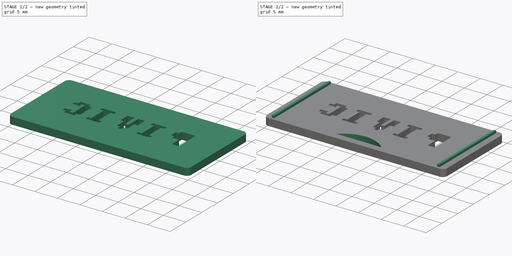
[diagram: build sequence overview — one tinted view per stage of 2, left to right]
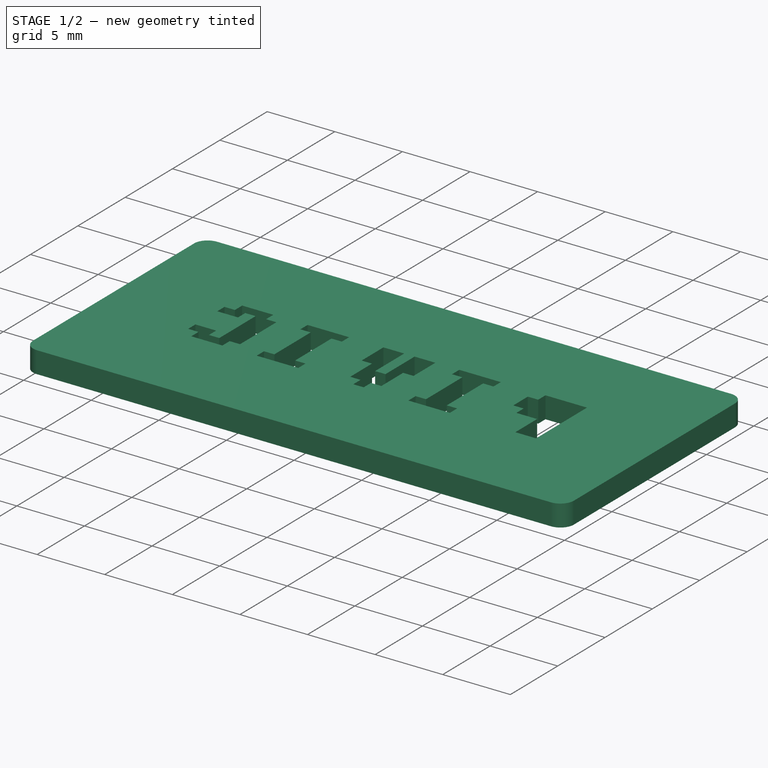
[diagram: stage 1 of 2 — iso view after this stage's code; geometry added in this stage tinted green]
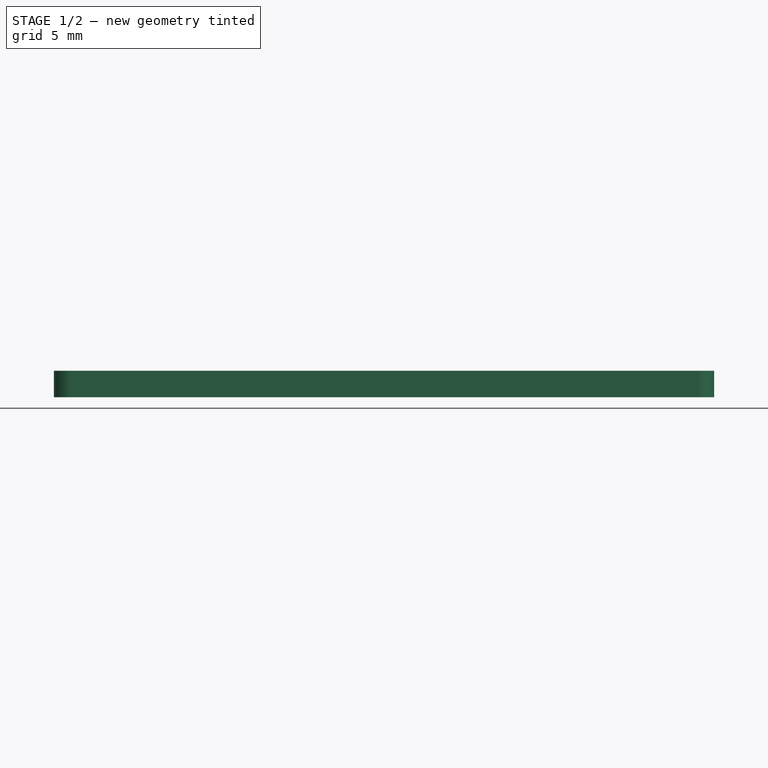
[diagram: stage 1 of 2 — front view after this stage's code; geometry added in this stage tinted green]
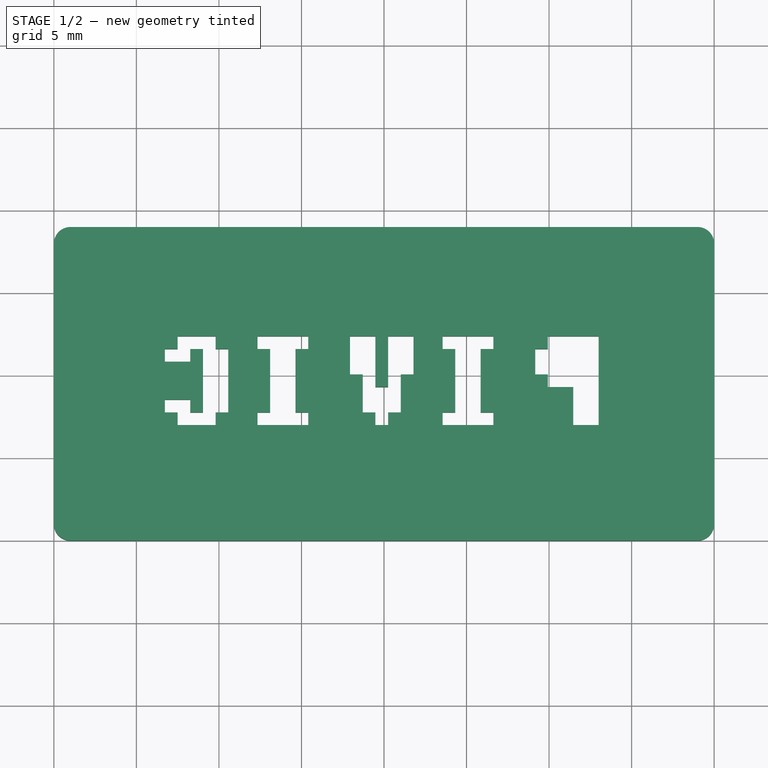
[diagram: stage 1 of 2 — top view after this stage's code; geometry added in this stage tinted green]
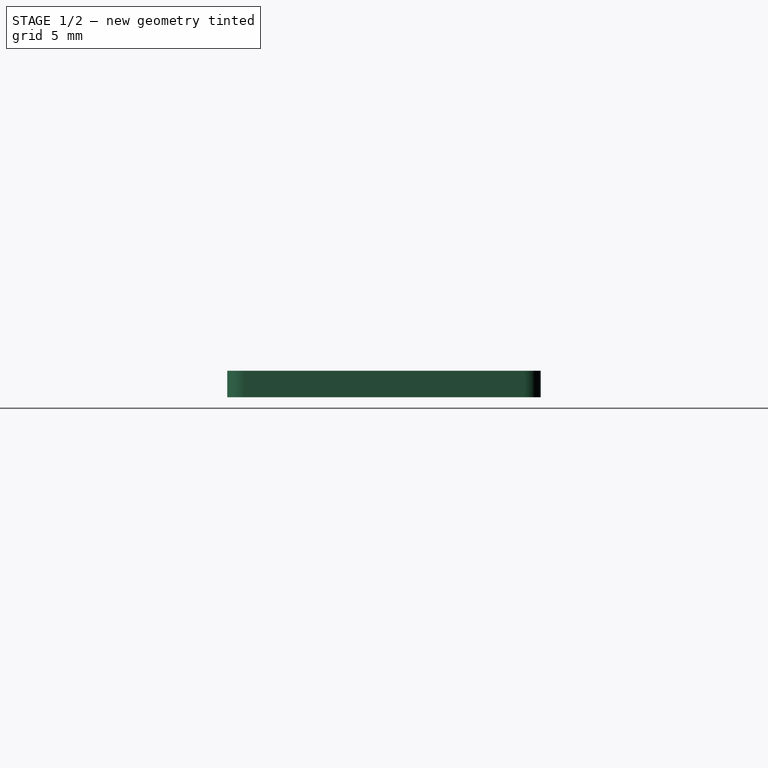
[diagram: stage 1 of 2 — right view after this stage's code; geometry added in this stage tinted green]
FCSTD DOCUMENT  (FreeCAD 0.21R33771 (Git))
Label: ocula-dvi-adapter-protection-plate
License: All rights reserved
LicenseURL: http://en.wikipedia.org/wiki/All_rights_reserved
objects: Sketcher::SketchObject×4, PartDesign::Pad×2, PartDesign::Pocket×2, PartDesign::Plane×1, Part::Part2DObjectPython×1, PartDesign::Body×1
note: 15 computed .brp shape members not serialized (recipe doc carries the construction recipe); baked Part::Feature solids carry a one-line shape summary decoded from their .brp

FEATURE [Sketcher::SketchObject] Sketch
  FullyConstrained = true
  MapMode = 5
  Support = -> [XY_Plane]
  sketch-geometry (8):
    g0: LineSegment StartX=1 StartY=19 StartZ=0 EndX=39 EndY=19 EndZ=0
    g1: LineSegment StartX=40 StartY=18 StartZ=0 EndX=40 EndY=1 EndZ=0
    g2: LineSegment StartX=39 StartY=0 StartZ=0 EndX=1 EndY=0 EndZ=0
    g3: LineSegment StartX=0 StartY=1 StartZ=0 EndX=0 EndY=18 EndZ=0
    g4: ArcOfCircle CenterX=1 CenterY=1 CenterZ=0 NormalX=0 NormalY=0 NormalZ=1 AngleXU=0 Radius=1 StartAngle=3.14159 EndAngle=4.71239
    g5: ArcOfCircle CenterX=1 CenterY=18 CenterZ=0 NormalX=0 NormalY=0 NormalZ=1 AngleXU=0 Radius=1 StartAngle=1.5708 EndAngle=3.14159
    g6: ArcOfCircle CenterX=39 CenterY=18 CenterZ=0 NormalX=0 NormalY=0 NormalZ=1 AngleXU=0 Radius=1 StartAngle=-1.8e-15 EndAngle=1.5708
    g7: ArcOfCircle CenterX=39 CenterY=1 CenterZ=0 NormalX=0 NormalY=0 NormalZ=1 AngleXU=0 Radius=1 StartAngle=4.71239 EndAngle=6.28319
  constraints (20):
    c: Horizontal(g0)
    c: Horizontal(g2)
    c: Vertical(g1)
    c: Vertical(g3)
    c: Tangent(g2,g4) = 1.5708
    c: Tangent(g3,g4) = 1.5708
    c: Tangent(g0,g5) = 1.5708
    c: Tangent(g3,g5) = 1.5708
    c: Tangent(g0,g6) = 1.5708
    c: Tangent(g1,g6) = 1.5708
    c: Tangent(g1,g7) = 1.5708
    c: Tangent(g2,g7) = 1.5708
    c: DistanceY(g2,g0) = 19
    c: DistanceX(g3,g1) = 40
    c: Diameter(g4) = 2
    c: Equal(g6,g7)
    c: Equal(g7,g5)
    c: Equal(g5,g4)
    c: PointOnObject(g2,g-1)
    c: PointOnObject(g3,g-2)
FEATURE [PartDesign::Pad] Pad
  Direction = (0,0,1)
  Length = 1.6
  Length2 = 10
  Profile = -> Sketch
  ReferenceAxis = -> Sketch [N_Axis]
  Type = 0
FEATURE [PartDesign::Plane] DatumPlane
  AttachmentOffset = pos=(0,0,1.6) rot=(0,0,1;0rad)
  Length = 76.4018
  MapMode = 5
  Placement = pos=(0,0,1.6) rot=(0,0,1;0rad)
  ResizeMode = 0
  Support = -> [XY_Plane]
  Width = 61.4018
FEATURE [Part::Part2DObjectPython] ShapeString  # Draft 2D object (typed FeaturePython)
  AttachmentOffset = pos=(-33,7,0) rot=(0,0,1;0rad)
  FontFile = <userpath>/Downloads/CUminiBold5x7Noh.ttf
  MakeFace = true
  MapMode = 5
  Placement = pos=(33,7,1.6) rot=(0,1,0;3.14159rad)
  Size = 2
  String = PIVIC
  Support = -> [Pad]
  Tracking = 1
FEATURE [Sketcher::SketchObject] Sketch001
  FullyConstrained = true
  MapMode = 5
  Placement = pos=(0,0,1.6) rot=(0,0,1;0rad)
  Support = -> [DatumPlane]
  sketch-geometry (8):
    g0: LineSegment StartX=1.4 StartY=18.5 StartZ=0 EndX=1.9 EndY=18.5 EndZ=0
    g1: LineSegment StartX=1.9 StartY=18.5 StartZ=0 EndX=1.9 EndY=0.5 EndZ=0
    g2: LineSegment StartX=1.9 StartY=0.5 StartZ=0 EndX=1.4 EndY=0.5 EndZ=0
    g3: LineSegment StartX=1.4 StartY=0.5 StartZ=0 EndX=1.4 EndY=18.5 EndZ=0
    g4: LineSegment StartX=38.1 StartY=18.5 StartZ=0 EndX=38.6 EndY=18.5 EndZ=0
    g5: LineSegment StartX=38.6 StartY=18.5 StartZ=0 EndX=38.6 EndY=0.5 EndZ=0
    g6: LineSegment StartX=38.6 StartY=0.5 StartZ=0 EndX=38.1 EndY=0.5 EndZ=0
    g7: LineSegment StartX=38.1 StartY=0.5 StartZ=0 EndX=38.1 EndY=18.5 EndZ=0
  constraints (24):
    c: Coincident(g0,g1)
    c: Coincident(g1,g2)
    c: Coincident(g2,g3)
    c: Coincident(g3,g0)
    c: Horizontal(g0)
    c: Horizontal(g2)
    c: Vertical(g1)
    c: Vertical(g3)
    c: Coincident(g4,g5)
    c: Coincident(g5,g6)
    c: Coincident(g6,g7)
    c: Coincident(g7,g4)
    c: Horizontal(g4)
    c: Horizontal(g6)
    c: Vertical(g5)
    c: Vertical(g7)
    c: DistanceX(g0,g0) = 0.5
    c: Equal(g4,g0)
    c: Horizontal(g1,g6)
    c: Horizontal(g0,g4)
    c: DistanceX(g0,g4) = 36.2
    c: DistanceX(g-1,g2) = 1.4
    c: DistanceY(g3,g3) = 18
    c: DistanceY(g-1,g2) = 0.5
FEATURE [PartDesign::Pocket] Pocket
  BaseFeature = -> Pad
  Direction = (0,0,1)
  Length = 5
  Length2 = 5
  Profile = -> ShapeString
  ReferenceAxis = -> ShapeString [N_Axis]
  Reversed = true
  Type = 0
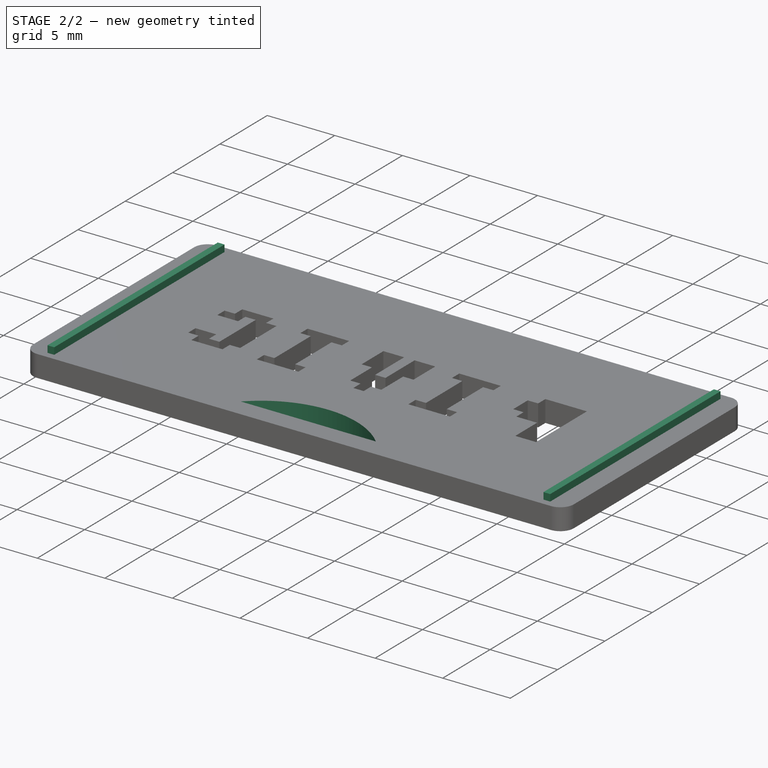
[diagram: stage 2 of 2 — iso view after this stage's code; geometry added in this stage tinted green]
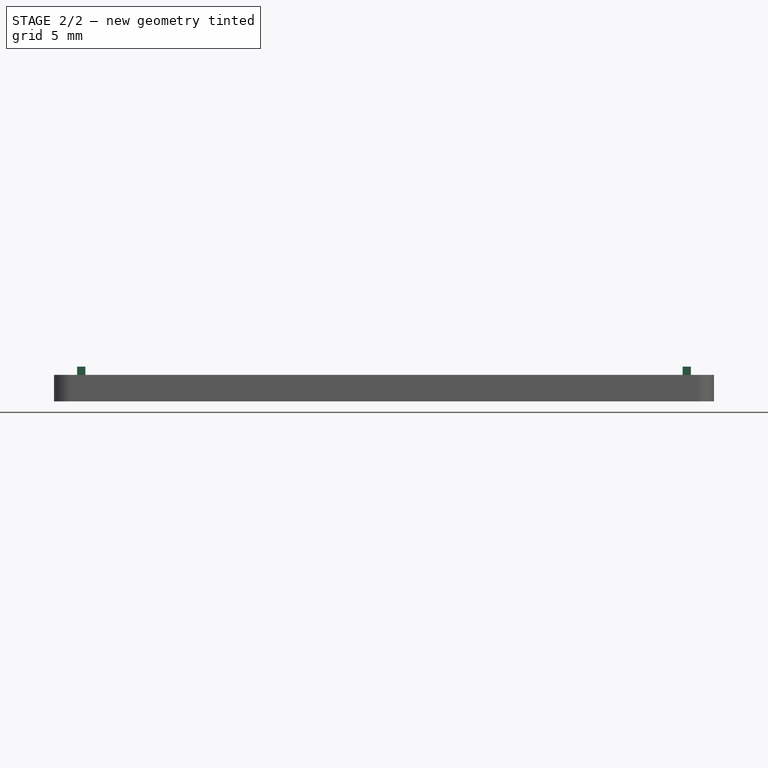
[diagram: stage 2 of 2 — front view after this stage's code; geometry added in this stage tinted green]
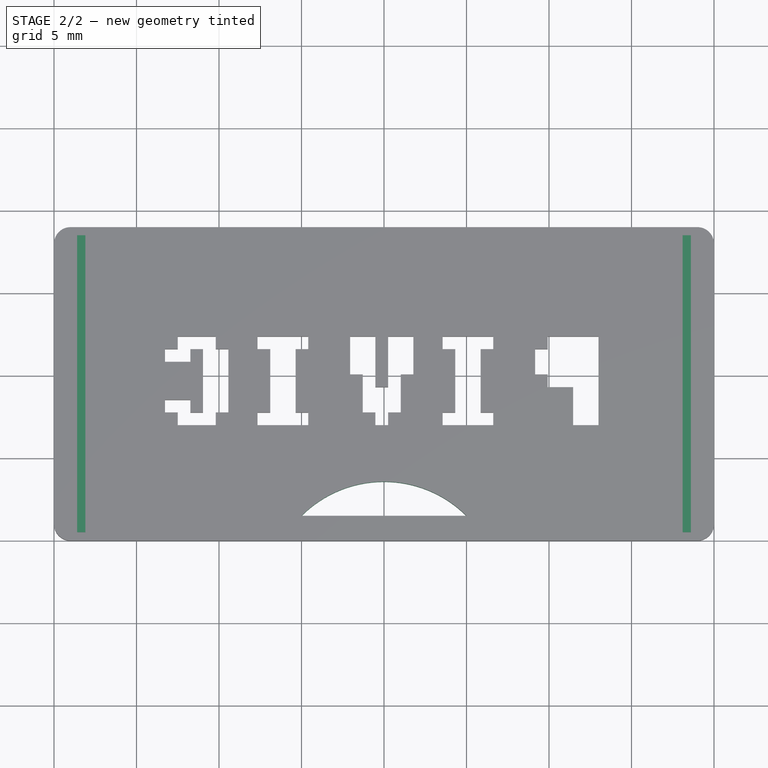
[diagram: stage 2 of 2 — top view after this stage's code; geometry added in this stage tinted green]
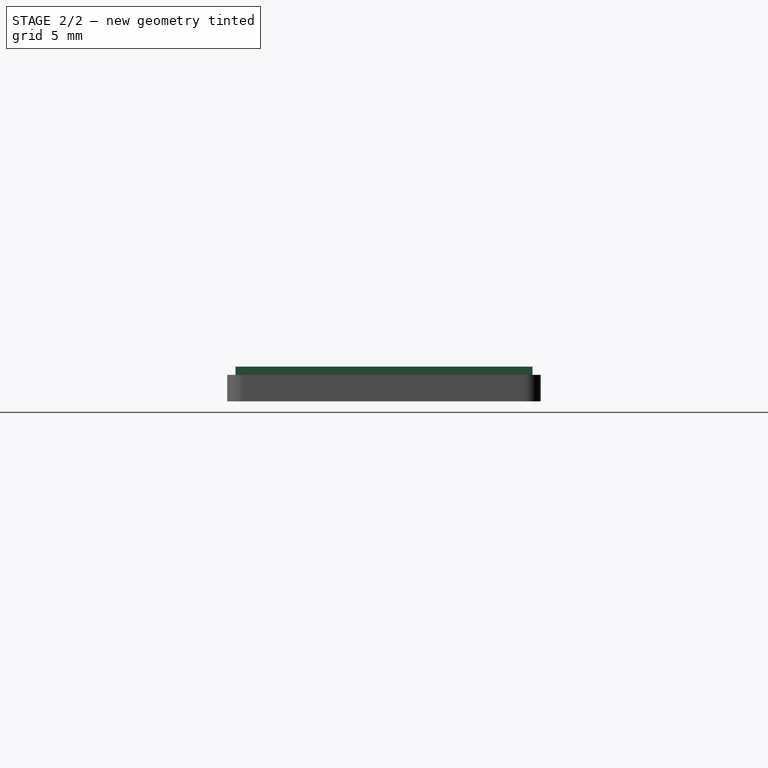
[diagram: stage 2 of 2 — right view after this stage's code; geometry added in this stage tinted green]
FEATURE [PartDesign::Pad] Pad001
  BaseFeature = -> Pocket
  Direction = (0,0,1)
  Length = 0.5
  Length2 = 10
  Profile = -> Sketch001
  ReferenceAxis = -> Sketch001 [N_Axis]
  Type = 0
FEATURE [Sketcher::SketchObject] Sketch002
  FullyConstrained = true
  MapMode = 5
  Placement = pos=(0,0,1.6) rot=(0,0,1;0rad)
  Support = -> [DatumPlane]
FEATURE [Sketcher::SketchObject] Sketch003
  FullyConstrained = true
  MapMode = 5
  Placement = pos=(0,0,1.6) rot=(0,0,1;0rad)
  Support = -> [DatumPlane]
  sketch-geometry (2):
    g0: LineSegment StartX=15 StartY=1.5 StartZ=0 EndX=25 EndY=1.5 EndZ=0
    g1: ArcOfCircle CenterX=20 CenterY=-3.5 CenterZ=0 NormalX=0 NormalY=0 NormalZ=1 AngleXU=0 Radius=7.07107 StartAngle=0.785398 EndAngle=2.35619
  constraints (7):
    c: Horizontal(g0)
    c: DistanceX(g-1,g0) = 15
    c: DistanceX(g0,g0) = 10
    c: DistanceY(g-1,g0) = 1.5
    c: Coincident(g1,g0)
    c: Coincident(g1,g0)
    c: DistanceY(g1,g0) = 5
FEATURE [PartDesign::Pocket] Pocket001
  BaseFeature = -> Pad001
  Direction = (0,0,-1)
  Length = 5
  Length2 = 5
  Profile = -> Sketch003
  ReferenceAxis = -> Sketch003 [N_Axis]
  Type = 0
FEATURE [PartDesign::Body] Body
  Group = -> [Sketch,Pad,DatumPlane,ShapeString,Sketch001,Pocket,Pad001,Sketch002,Sketch003,Pocket001]
  Origin = -> Origin
  Tip = -> Pocket001
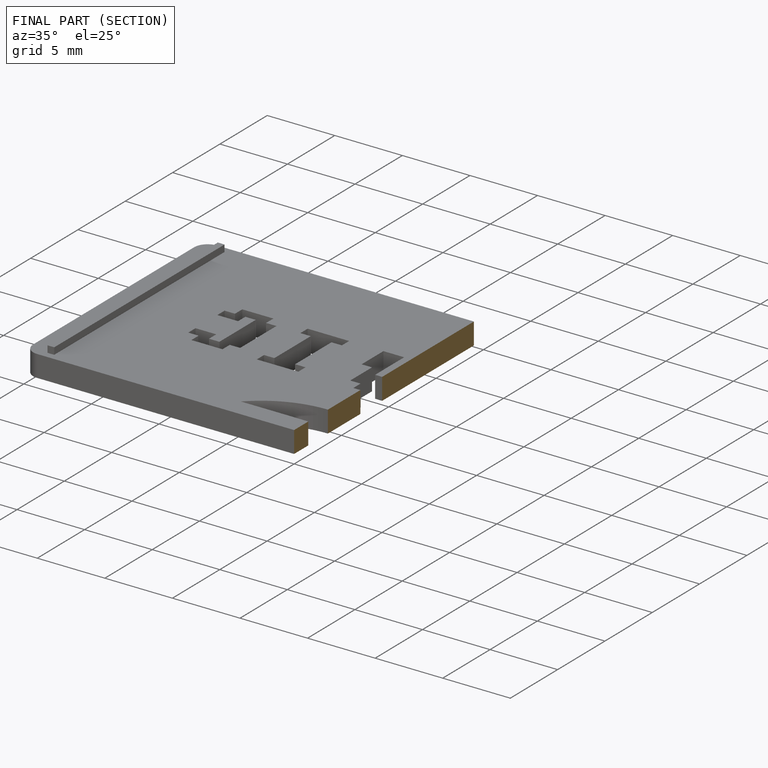
[diagram: finished part — half-section view (interior)]
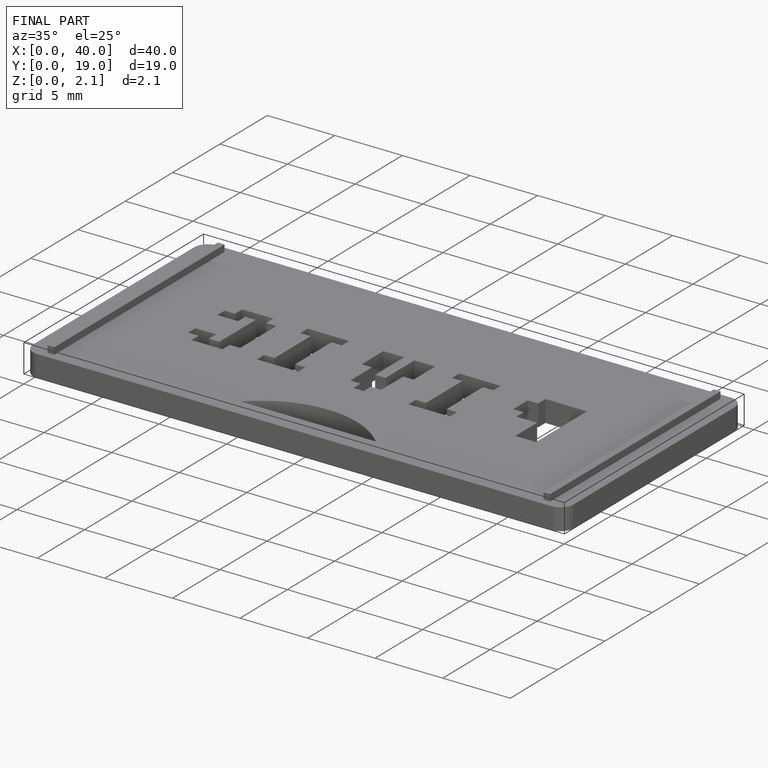
[diagram: finished part — iso view with bounding-box wireframe]
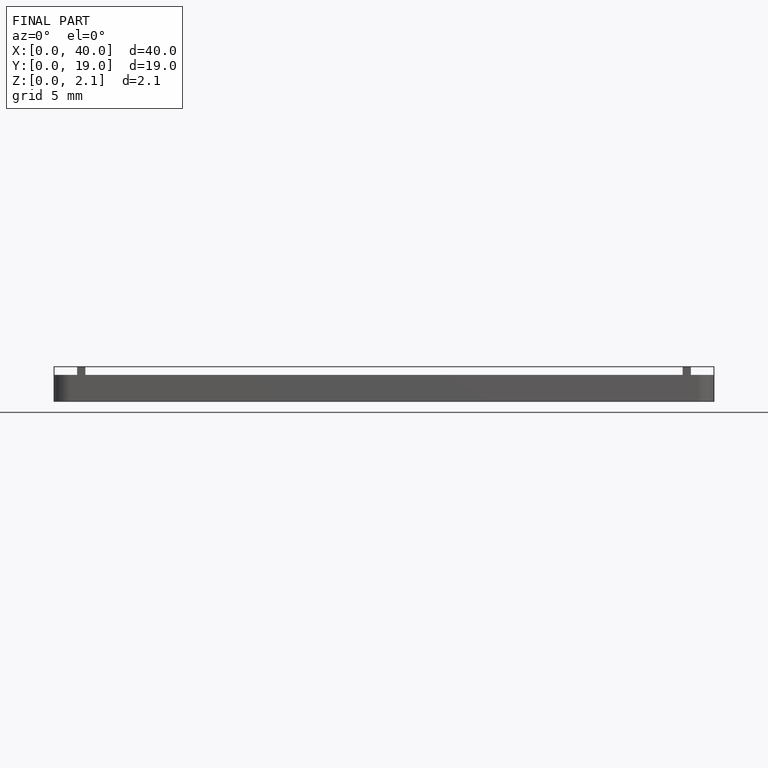
[diagram: finished part — front view with bounding-box wireframe]
